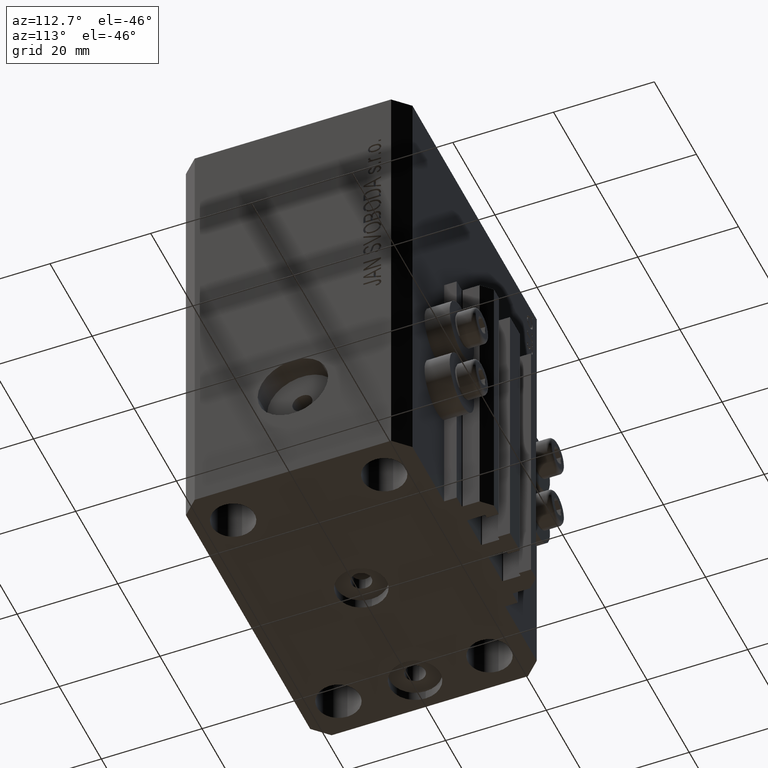
[diagram: clean part render]
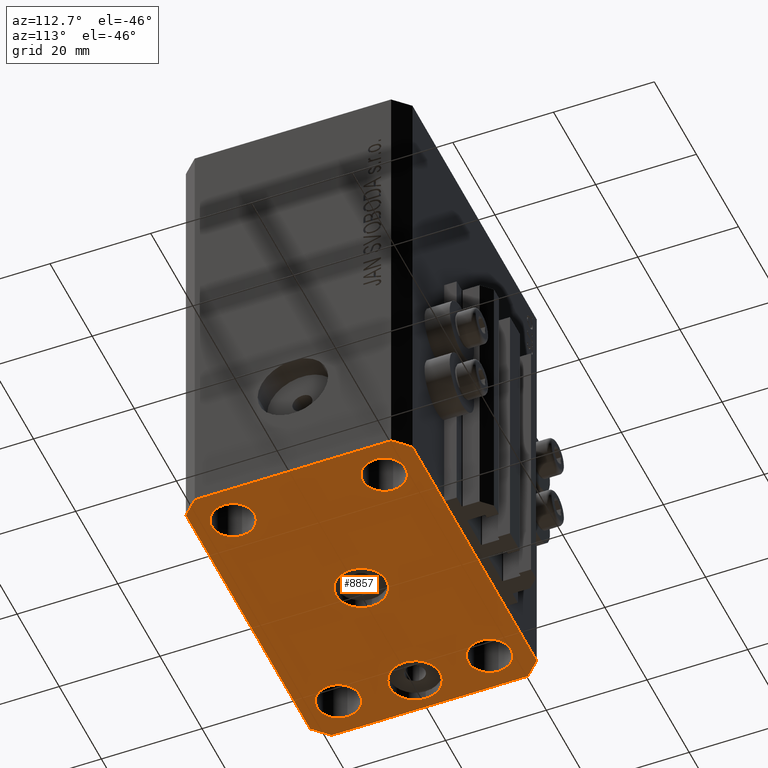
[diagram: same view with one face highlighted and labeled with its STEP entity id]
A machine part, auxiliary view. The second image highlights one B-rep face of the part: STEP entity #8857.
In plain terms, the highlighted planar face has unit normal (0, 0, 1).
Its self-contained STEP definition (entity closure, byte-faithful):
#65 = LINE ( 'NONE', #34922, #26271 ) ;
#522 = EDGE_CURVE ( 'NONE', #13719, #33028, #35566, .T. ) ;
#989 = FACE_BOUND ( 'NONE', #10386, .T. ) ;
#1190 = AXIS2_PLACEMENT_3D ( 'NONE', #9916, #46571, #43465 ) ;
#1370 = EDGE_LOOP ( 'NONE', ( #35921, #11666 ) ) ;
#1473 = VERTEX_POINT ( 'NONE', #39267 ) ;
#1487 = VECTOR ( 'NONE', #20836, 1000.000000000000000 ) ;
#2242 = ORIENTED_EDGE ( 'NONE', *, *, #15343, .F. ) ;
#2250 = EDGE_LOOP ( 'NONE', ( #27420, #30739 ) ) ;
#2969 = EDGE_CURVE ( 'NONE', #10858, #1473, #37731, .T. ) ;
#3190 = CARTESIAN_POINT ( 'NONE',  ( -32.49999999999650413, -19.49999999999949907, -90.00000000000000000 ) ) ;
#3604 = CARTESIAN_POINT ( 'NONE',  ( -25.00000000000000000, 14.99999999999999645, -90.00000000000000000 ) ) ;
#3732 = DIRECTION ( 'NONE',  ( 0.000000000000000000, 0.000000000000000000, -1.000000000000000000 ) ) ;
#3910 = VECTOR ( 'NONE', #30007, 1000.000000000000000 ) ;
#4024 = CARTESIAN_POINT ( 'NONE',  ( 29.49999999999707967, 22.49999999999952038, -90.00000000000000000 ) ) ;
#4209 = ORIENTED_EDGE ( 'NONE', *, *, #33698, .F. ) ;
#4608 = ORIENTED_EDGE ( 'NONE', *, *, #34010, .F. ) ;
#5155 = AXIS2_PLACEMENT_3D ( 'NONE', #23796, #12763, #38167 ) ;
#5730 = DIRECTION ( 'NONE',  ( 0.000000000000000000, -1.000000000000000000, 0.000000000000000000 ) ) ;
#5802 = DIRECTION ( 'NONE',  ( 1.000000000000000000, 0.000000000000000000, 0.000000000000000000 ) ) ;
#7217 = DIRECTION ( 'NONE',  ( -0.000000000000000000, -0.000000000000000000, -1.000000000000000000 ) ) ;
#7359 = VECTOR ( 'NONE', #46499, 1000.000000000000000 ) ;
#8042 = CARTESIAN_POINT ( 'NONE',  ( -32.49999999999650413, 19.49999999999949907, -90.00000000000000000 ) ) ;
#8304 = DIRECTION ( 'NONE',  ( -0.000000000000000000, -0.000000000000000000, -1.000000000000000000 ) ) ;
#8389 = CARTESIAN_POINT ( 'NONE',  ( 32.49999999999651124, -19.49999999999949196, -90.00000000000000000 ) ) ;
#8406 = CARTESIAN_POINT ( 'NONE',  ( -29.49999999999650413, 22.49999999999949907, -90.00000000000000000 ) ) ;
#8595 = CARTESIAN_POINT ( 'NONE',  ( -29.25000000004036593, -15.00000000000000355, -90.00000000000000000 ) ) ;
#8857 = ADVANCED_FACE ( 'NONE', ( #41731, #41256, #37659, #30465, #989, #15374, #19686 ), #30937, .F. ) ;
#8911 = CIRCLE ( 'NONE', #34954, 4.250000000040370374 ) ;
#8971 = ORIENTED_EDGE ( 'NONE', *, *, #13271, .F. ) ;
#9620 = CIRCLE ( 'NONE', #1190, 5.000000000000000000 ) ;
#9693 = VECTOR ( 'NONE', #30088, 1000.000000000000114 ) ;
#9730 = CIRCLE ( 'NONE', #12807, 4.250000000021375790 ) ;
#9798 = VERTEX_POINT ( 'NONE', #26007 ) ;
#9916 = CARTESIAN_POINT ( 'NONE',  ( 0.000000000000000000, 0.000000000000000000, -90.00000000000000000 ) ) ;
#10379 = EDGE_LOOP ( 'NONE', ( #4608, #24043, #29218, #4209, #8971, #37106, #26736, #43190 ) ) ;
#10386 = EDGE_LOOP ( 'NONE', ( #2242, #23184 ) ) ;
#10666 = VERTEX_POINT ( 'NONE', #3190 ) ;
#10858 = VERTEX_POINT ( 'NONE', #27450 ) ;
#10867 = DIRECTION ( 'NONE',  ( 1.000000000000000000, 0.000000000000000000, 0.000000000000000000 ) ) ;
#11195 = DIRECTION ( 'NONE',  ( 1.000000000000000000, 0.000000000000000000, 0.000000000000000000 ) ) ;
#11269 = CIRCLE ( 'NONE', #5155, 4.249999999957291053 ) ;
#11528 = DIRECTION ( 'NONE',  ( 1.000000000000000000, 0.000000000000000000, 0.000000000000000000 ) ) ;
#11666 = ORIENTED_EDGE ( 'NONE', *, *, #42284, .F. ) ;
#11866 = LINE ( 'NONE', #40398, #9693 ) ;
#11939 = CIRCLE ( 'NONE', #32605, 4.250000000021375790 ) ;
#12763 = DIRECTION ( 'NONE',  ( -0.000000000000000000, -0.000000000000000000, -1.000000000000000000 ) ) ;
#12807 = AXIS2_PLACEMENT_3D ( 'NONE', #29044, #7217, #11528 ) ;
#12959 = EDGE_CURVE ( 'NONE', #27230, #36317, #8911, .T. ) ;
#13271 = EDGE_CURVE ( 'NONE', #38473, #38906, #16560, .T. ) ;
#13719 = VERTEX_POINT ( 'NONE', #15478 ) ;
#13949 = VERTEX_POINT ( 'NONE', #4024 ) ;
#14149 = EDGE_CURVE ( 'NONE', #10666, #38473, #11866, .T. ) ;
#14178 = VERTEX_POINT ( 'NONE', #8042 ) ;
#14402 = CARTESIAN_POINT ( 'NONE',  ( 29.49999999999650413, -22.49999999999949196, -90.00000000000000000 ) ) ;
#14545 = DIRECTION ( 'NONE',  ( -0.000000000000000000, -0.000000000000000000, -1.000000000000000000 ) ) ;
#14857 = DIRECTION ( 'NONE',  ( 0.000000000000000000, 0.000000000000000000, -1.000000000000000000 ) ) ;
#14900 = AXIS2_PLACEMENT_3D ( 'NONE', #29733, #14857, #44576 ) ;
#15343 = EDGE_CURVE ( 'NONE', #1473, #10858, #11269, .T. ) ;
#15371 = VERTEX_POINT ( 'NONE', #34576 ) ;
#15374 = FACE_BOUND ( 'NONE', #16253, .T. ) ;
#15456 = CARTESIAN_POINT ( 'NONE',  ( -20.74999999997862687, 14.99999999999999645, -90.00000000000000000 ) ) ;
#15478 = CARTESIAN_POINT ( 'NONE',  ( 5.000000000000000000, 6.123233995736765296E-16, -90.00000000000000000 ) ) ;
#15520 = EDGE_CURVE ( 'NONE', #36305, #26473, #9730, .T. ) ;
#15608 = DIRECTION ( 'NONE',  ( 1.000000000000000000, 0.000000000000000000, -0.000000000000000000 ) ) ;
#16253 = EDGE_LOOP ( 'NONE', ( #42799, #33367 ) ) ;
#16296 = AXIS2_PLACEMENT_3D ( 'NONE', #19714, #41758, #5802 ) ;
#16560 = LINE ( 'NONE', #39080, #7359 ) ;
#16692 = DIRECTION ( 'NONE',  ( -0.7071067811865474617, -0.7071067811865474617, 0.000000000000000000 ) ) ;
#16906 = AXIS2_PLACEMENT_3D ( 'NONE', #31703, #39839, #42730 ) ;
#17021 = DIRECTION ( 'NONE',  ( 0.000000000000000000, 0.000000000000000000, -1.000000000000000000 ) ) ;
#17261 = CARTESIAN_POINT ( 'NONE',  ( -25.50000000000000000, 0.000000000000000000, -90.00000000000000000 ) ) ;
#17342 = ORIENTED_EDGE ( 'NONE', *, *, #47297, .F. ) ;
#18434 = CARTESIAN_POINT ( 'NONE',  ( 29.49999999999650413, -22.49999999999949196, -90.00000000000000000 ) ) ;
#19686 = FACE_OUTER_BOUND ( 'NONE', #10379, .T. ) ;
#19714 = CARTESIAN_POINT ( 'NONE',  ( 24.99999999999999289, -15.00000000000000355, -90.00000000000000000 ) ) ;
#20442 = CARTESIAN_POINT ( 'NONE',  ( -29.49999999999650413, -22.49999999999949907, -90.00000000000000000 ) ) ;
#20836 = DIRECTION ( 'NONE',  ( -1.000000000000000000, -3.528251137580330676E-16, 0.000000000000000000 ) ) ;
#20867 = EDGE_CURVE ( 'NONE', #33028, #13719, #9620, .T. ) ;
#21437 = VERTEX_POINT ( 'NONE', #8389 ) ;
#21568 = EDGE_CURVE ( 'NONE', #9798, #15371, #41808, .T. ) ;
#21977 = EDGE_CURVE ( 'NONE', #26473, #36305, #11939, .T. ) ;
#23184 = ORIENTED_EDGE ( 'NONE', *, *, #2969, .F. ) ;
#23211 = DIRECTION ( 'NONE',  ( 1.334402673828349134E-14, 1.000000000000000000, 0.000000000000000000 ) ) ;
#23471 = CARTESIAN_POINT ( 'NONE',  ( -20.74999999995962341, -15.00000000000000355, -90.00000000000000000 ) ) ;
#23738 = CARTESIAN_POINT ( 'NONE',  ( 29.49999999999707967, 22.49999999999952038, -90.00000000000000000 ) ) ;
#23796 = CARTESIAN_POINT ( 'NONE',  ( 25.00000000000000000, 14.99999999999999289, -90.00000000000000000 ) ) ;
#23837 = AXIS2_PLACEMENT_3D ( 'NONE', #28709, #14545, #11195 ) ;
#23959 = AXIS2_PLACEMENT_3D ( 'NONE', #29097, #43705, #10867 ) ;
#24043 = ORIENTED_EDGE ( 'NONE', *, *, #43175, .F. ) ;
#24903 = EDGE_LOOP ( 'NONE', ( #42278, #39129 ) ) ;
#25896 = DIRECTION ( 'NONE',  ( 1.000000000000000000, 0.000000000000000000, 0.000000000000000000 ) ) ;
#26007 = CARTESIAN_POINT ( 'NONE',  ( -20.50000000000333955, 6.123233995732674066E-16, -90.00000000000000000 ) ) ;
#26191 = CARTESIAN_POINT ( 'NONE',  ( 29.24999999997631051, -15.00000000000000355, -90.00000000000000000 ) ) ;
#26271 = VECTOR ( 'NONE', #16692, 1000.000000000000114 ) ;
#26473 = VERTEX_POINT ( 'NONE', #15456 ) ;
#26736 = ORIENTED_EDGE ( 'NONE', *, *, #43524, .F. ) ;
#27230 = VERTEX_POINT ( 'NONE', #23471 ) ;
#27276 = AXIS2_PLACEMENT_3D ( 'NONE', #40155, #3732, #29377 ) ;
#27420 = ORIENTED_EDGE ( 'NONE', *, *, #20867, .F. ) ;
#27450 = CARTESIAN_POINT ( 'NONE',  ( 20.75000000004271072, 14.99999999999999289, -90.00000000000000000 ) ) ;
#27601 = CARTESIAN_POINT ( 'NONE',  ( 32.49999999999702993, 19.49999999999945999, -90.00000000000000000 ) ) ;
#28654 = AXIS2_PLACEMENT_3D ( 'NONE', #34300, #44844, #15608 ) ;
#28709 = CARTESIAN_POINT ( 'NONE',  ( 24.99999999999999289, -15.00000000000000355, -90.00000000000000000 ) ) ;
#29044 = CARTESIAN_POINT ( 'NONE',  ( -25.00000000000000000, 14.99999999999999645, -90.00000000000000000 ) ) ;
#29097 = CARTESIAN_POINT ( 'NONE',  ( 25.00000000000000000, 14.99999999999999289, -90.00000000000000000 ) ) ;
#29218 = ORIENTED_EDGE ( 'NONE', *, *, #44227, .F. ) ;
#29377 = DIRECTION ( 'NONE',  ( -1.000000000000000000, 0.000000000000000000, 0.000000000000000000 ) ) ;
#29410 = DIRECTION ( 'NONE',  ( 1.000000000000000000, 0.000000000000000000, 0.000000000000000000 ) ) ;
#29733 = CARTESIAN_POINT ( 'NONE',  ( 0.000000000000000000, 0.000000000000000000, -90.00000000000000000 ) ) ;
#30007 = DIRECTION ( 'NONE',  ( -0.7071067811865344721, 0.7071067811865606734, 0.000000000000000000 ) ) ;
#30088 = DIRECTION ( 'NONE',  ( 0.7071067811865474617, -0.7071067811865474617, 0.000000000000000000 ) ) ;
#30162 = LINE ( 'NONE', #44774, #39935 ) ;
#30465 = FACE_BOUND ( 'NONE', #30533, .T. ) ;
#30533 = EDGE_LOOP ( 'NONE', ( #17342, #32297 ) ) ;
#30739 = ORIENTED_EDGE ( 'NONE', *, *, #522, .F. ) ;
#30937 = PLANE ( 'NONE',  #28654 ) ;
#31517 = VECTOR ( 'NONE', #5730, 1000.000000000000000 ) ;
#31703 = CARTESIAN_POINT ( 'NONE',  ( -24.99999999999999289, -15.00000000000000355, -90.00000000000000000 ) ) ;
#32297 = ORIENTED_EDGE ( 'NONE', *, *, #42891, .F. ) ;
#32363 = DIRECTION ( 'NONE',  ( -0.000000000000000000, -0.000000000000000000, -1.000000000000000000 ) ) ;
#32605 = AXIS2_PLACEMENT_3D ( 'NONE', #3604, #32363, #25896 ) ;
#32861 = DIRECTION ( 'NONE',  ( 0.7071067811865483499, 0.7071067811865466846, 0.000000000000000000 ) ) ;
#33001 = CARTESIAN_POINT ( 'NONE',  ( -24.99999999999999289, -15.00000000000000355, -90.00000000000000000 ) ) ;
#33028 = VERTEX_POINT ( 'NONE', #42586 ) ;
#33365 = CARTESIAN_POINT ( 'NONE',  ( 32.49999999999702993, 19.49999999999945999, -90.00000000000000000 ) ) ;
#33367 = ORIENTED_EDGE ( 'NONE', *, *, #15520, .F. ) ;
#33698 = EDGE_CURVE ( 'NONE', #38906, #21437, #43424, .T. ) ;
#34010 = EDGE_CURVE ( 'NONE', #13949, #46572, #35457, .T. ) ;
#34031 = VERTEX_POINT ( 'NONE', #36811 ) ;
#34300 = CARTESIAN_POINT ( 'NONE',  ( 0.000000000000000000, 0.000000000000000000, -90.00000000000000000 ) ) ;
#34576 = CARTESIAN_POINT ( 'NONE',  ( -30.49999999999665690, 0.000000000000000000, -90.00000000000000000 ) ) ;
#34922 = CARTESIAN_POINT ( 'NONE',  ( -29.49999999999650413, 22.49999999999949907, -90.00000000000000000 ) ) ;
#34954 = AXIS2_PLACEMENT_3D ( 'NONE', #33001, #8304, #29410 ) ;
#35022 = DIRECTION ( 'NONE',  ( -1.000000000000000000, 0.000000000000000000, 0.000000000000000000 ) ) ;
#35457 = LINE ( 'NONE', #23738, #1487 ) ;
#35566 = CIRCLE ( 'NONE', #14900, 5.000000000000000000 ) ;
#35921 = ORIENTED_EDGE ( 'NONE', *, *, #12959, .F. ) ;
#36305 = VERTEX_POINT ( 'NONE', #41431 ) ;
#36317 = VERTEX_POINT ( 'NONE', #8595 ) ;
#36811 = CARTESIAN_POINT ( 'NONE',  ( 20.75000000002367884, -15.00000000000000355, -90.00000000000000000 ) ) ;
#36954 = LINE ( 'NONE', #33365, #3910 ) ;
#36959 = CIRCLE ( 'NONE', #16296, 4.249999999976314058 ) ;
#37106 = ORIENTED_EDGE ( 'NONE', *, *, #14149, .F. ) ;
#37452 = VECTOR ( 'NONE', #32861, 1000.000000000000000 ) ;
#37587 = CIRCLE ( 'NONE', #16906, 4.250000000040370374 ) ;
#37659 = FACE_BOUND ( 'NONE', #1370, .T. ) ;
#37731 = CIRCLE ( 'NONE', #23959, 4.249999999957291053 ) ;
#38167 = DIRECTION ( 'NONE',  ( 1.000000000000000000, 0.000000000000000000, 0.000000000000000000 ) ) ;
#38473 = VERTEX_POINT ( 'NONE', #20442 ) ;
#38557 = CARTESIAN_POINT ( 'NONE',  ( -32.49999999999650413, 19.49999999999949907, -90.00000000000000000 ) ) ;
#38906 = VERTEX_POINT ( 'NONE', #18434 ) ;
#39080 = CARTESIAN_POINT ( 'NONE',  ( -29.49999999999650413, -22.49999999999949907, -90.00000000000000000 ) ) ;
#39122 = CIRCLE ( 'NONE', #23837, 4.249999999976314058 ) ;
#39129 = ORIENTED_EDGE ( 'NONE', *, *, #21568, .F. ) ;
#39267 = CARTESIAN_POINT ( 'NONE',  ( 29.24999999995729283, 14.99999999999999289, -90.00000000000000000 ) ) ;
#39839 = DIRECTION ( 'NONE',  ( -0.000000000000000000, -0.000000000000000000, -1.000000000000000000 ) ) ;
#39905 = CIRCLE ( 'NONE', #43697, 4.999999999996659561 ) ;
#39935 = VECTOR ( 'NONE', #23211, 1000.000000000000000 ) ;
#40155 = CARTESIAN_POINT ( 'NONE',  ( -25.50000000000000000, 0.000000000000000000, -90.00000000000000000 ) ) ;
#40398 = CARTESIAN_POINT ( 'NONE',  ( -32.49999999999650413, -19.49999999999949907, -90.00000000000000000 ) ) ;
#41256 = FACE_BOUND ( 'NONE', #24903, .T. ) ;
#41431 = CARTESIAN_POINT ( 'NONE',  ( -29.25000000002137668, 14.99999999999999645, -90.00000000000000000 ) ) ;
#41731 = FACE_BOUND ( 'NONE', #2250, .T. ) ;
#41758 = DIRECTION ( 'NONE',  ( -0.000000000000000000, -0.000000000000000000, -1.000000000000000000 ) ) ;
#41808 = CIRCLE ( 'NONE', #27276, 4.999999999996659561 ) ;
#42278 = ORIENTED_EDGE ( 'NONE', *, *, #42514, .F. ) ;
#42284 = EDGE_CURVE ( 'NONE', #36317, #27230, #37587, .T. ) ;
#42514 = EDGE_CURVE ( 'NONE', #15371, #9798, #39905, .T. ) ;
#42586 = CARTESIAN_POINT ( 'NONE',  ( -5.000000000000000000, 0.000000000000000000, -90.00000000000000000 ) ) ;
#42730 = DIRECTION ( 'NONE',  ( 1.000000000000000000, 0.000000000000000000, 0.000000000000000000 ) ) ;
#42799 = ORIENTED_EDGE ( 'NONE', *, *, #21977, .F. ) ;
#42891 = EDGE_CURVE ( 'NONE', #34031, #43171, #39122, .T. ) ;
#43171 = VERTEX_POINT ( 'NONE', #26191 ) ;
#43175 = EDGE_CURVE ( 'NONE', #43325, #13949, #36954, .T. ) ;
#43190 = ORIENTED_EDGE ( 'NONE', *, *, #47215, .F. ) ;
#43325 = VERTEX_POINT ( 'NONE', #27601 ) ;
#43424 = LINE ( 'NONE', #14402, #37452 ) ;
#43465 = DIRECTION ( 'NONE',  ( -1.000000000000000000, 0.000000000000000000, 0.000000000000000000 ) ) ;
#43524 = EDGE_CURVE ( 'NONE', #14178, #10666, #45513, .T. ) ;
#43697 = AXIS2_PLACEMENT_3D ( 'NONE', #17261, #17021, #35022 ) ;
#43705 = DIRECTION ( 'NONE',  ( -0.000000000000000000, -0.000000000000000000, -1.000000000000000000 ) ) ;
#44227 = EDGE_CURVE ( 'NONE', #21437, #43325, #30162, .T. ) ;
#44576 = DIRECTION ( 'NONE',  ( -1.000000000000000000, 0.000000000000000000, 0.000000000000000000 ) ) ;
#44774 = CARTESIAN_POINT ( 'NONE',  ( 32.49999999999651124, -19.49999999999949196, -90.00000000000000000 ) ) ;
#44844 = DIRECTION ( 'NONE',  ( 0.000000000000000000, 0.000000000000000000, 1.000000000000000000 ) ) ;
#45513 = LINE ( 'NONE', #38557, #31517 ) ;
#46499 = DIRECTION ( 'NONE',  ( 1.000000000000000000, 1.176083712526788232E-16, 0.000000000000000000 ) ) ;
#46571 = DIRECTION ( 'NONE',  ( 0.000000000000000000, 0.000000000000000000, -1.000000000000000000 ) ) ;
#46572 = VERTEX_POINT ( 'NONE', #8406 ) ;
#47215 = EDGE_CURVE ( 'NONE', #46572, #14178, #65, .T. ) ;
#47297 = EDGE_CURVE ( 'NONE', #43171, #34031, #36959, .T. ) ;